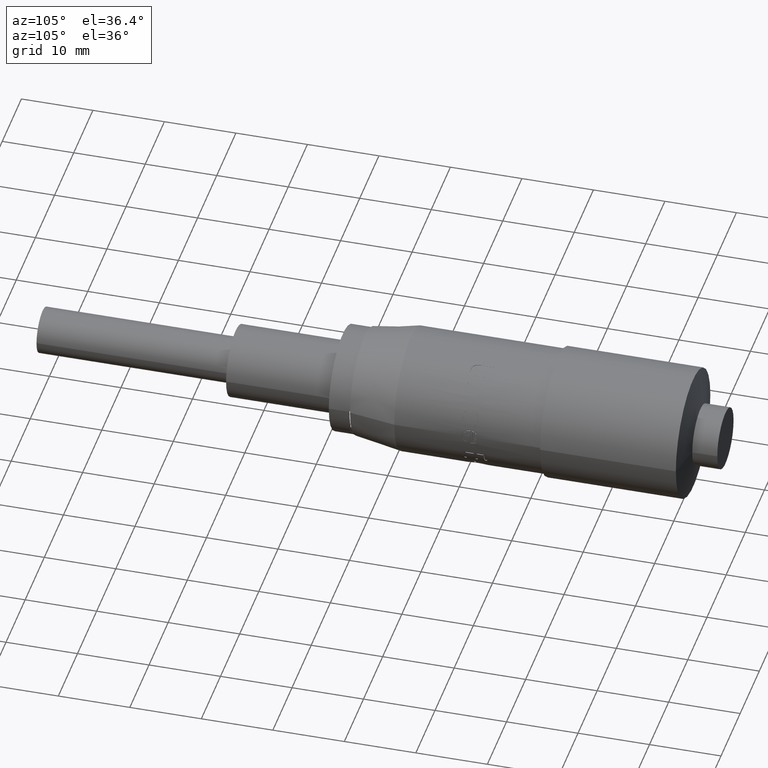
[diagram: clean part render]
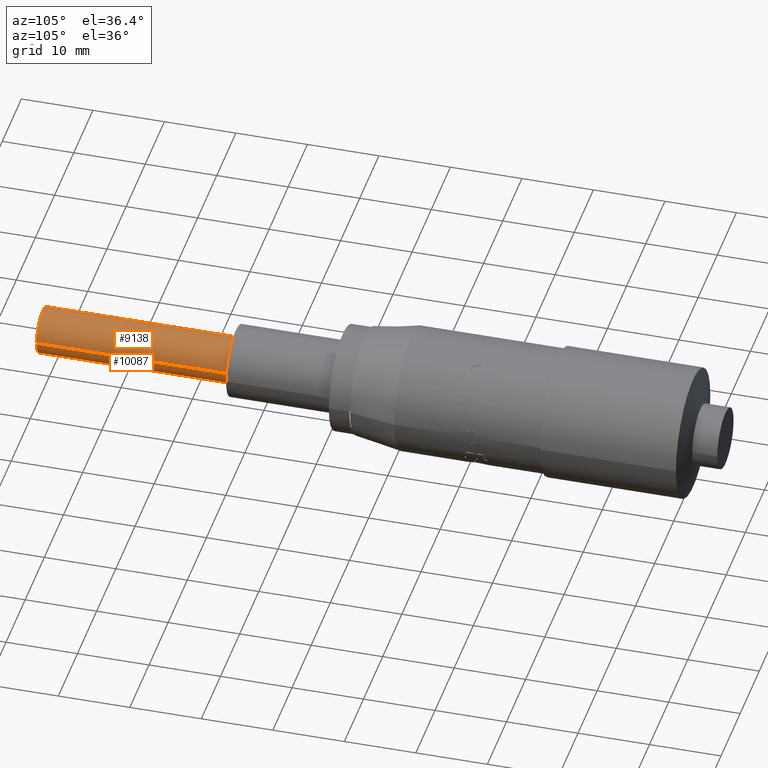
[diagram: same view with one multi-face feature highlighted, each face labeled with its STEP entity id]
A machine part, auxiliary view. The highlighted faces form ONE feature: a constant-radius fillet chain: 2 tangent blend faces with common blend radius 3.175 mm. The faces share edges in the B-rep.
Their STEP definitions:
[1] entity #10087 (Cylinder):
#144 = VERTEX_POINT ( 'NONE', #7089 ) ;
#562 = CARTESIAN_POINT ( 'NONE',  ( 33.65296289245996100, 41.06720585310775100, 28.87709965591408000 ) ) ;
#604 = DIRECTION ( 'NONE',  ( -1.000000000000000000, 0.0000000000000000000, 0.0000000000000000000 ) ) ;
#606 = VERTEX_POINT ( 'NONE', #4324 ) ;
#730 = CYLINDRICAL_SURFACE ( 'NONE', #7176, 3.174999999999997200 ) ;
#754 = EDGE_CURVE ( 'NONE', #144, #4004, #10097, .T. ) ;
#1103 = CARTESIAN_POINT ( 'NONE',  ( 33.65296289245996100, 45.02618278390013300, 28.87709965591408000 ) ) ;
#1710 = LINE ( 'NONE', #8527, #10581 ) ;
#1788 = VECTOR ( 'NONE', #9844, 1000.000000000000000 ) ;
#1985 = DIRECTION ( 'NONE',  ( 1.000000000000000000, 0.0000000000000000000, 0.0000000000000000000 ) ) ;
#2079 = ORIENTED_EDGE ( 'NONE', *, *, #754, .T. ) ;
#2851 = EDGE_LOOP ( 'NONE', ( #4024, #2079, #10700, #9552 ) ) ;
#3262 = VERTEX_POINT ( 'NONE', #4577 ) ;
#3376 = AXIS2_PLACEMENT_3D ( 'NONE', #11201, #5918, #604 ) ;
#4004 = VERTEX_POINT ( 'NONE', #4258 ) ;
#4024 = ORIENTED_EDGE ( 'NONE', *, *, #9424, .F. ) ;
#4110 = DIRECTION ( 'NONE',  ( -1.058937486943297600E-016, 1.000000000000000000, -0.0000000000000000000 ) ) ;
#4153 = LINE ( 'NONE', #9881, #1788 ) ;
#4190 = FACE_OUTER_BOUND ( 'NONE', #2851, .T. ) ;
#4258 = CARTESIAN_POINT ( 'NONE',  ( 30.47796289245997100, -29.97381721609986700, 28.87709965591408000 ) ) ;
#4324 = CARTESIAN_POINT ( 'NONE',  ( 36.82796289245995800, 45.02618278390013300, 28.87709965591408000 ) ) ;
#4577 = CARTESIAN_POINT ( 'NONE',  ( 30.47796289245996700, 45.02618278390013300, 28.87709965591408000 ) ) ;
#5332 = EDGE_CURVE ( 'NONE', #4004, #3262, #4153, .T. ) ;
#5918 = DIRECTION ( 'NONE',  ( -1.058937486943297600E-016, 1.000000000000000000, -0.0000000000000000000 ) ) ;
#6454 = EDGE_CURVE ( 'NONE', #3262, #606, #9994, .T. ) ;
#6752 = DIRECTION ( 'NONE',  ( -1.058937486943297600E-016, 1.000000000000000000, -0.0000000000000000000 ) ) ;
#7089 = CARTESIAN_POINT ( 'NONE',  ( 36.82796289245996500, -29.97381721609986700, 28.87709965591408000 ) ) ;
#7176 = AXIS2_PLACEMENT_3D ( 'NONE', #562, #6752, #11200 ) ;
#7278 = DIRECTION ( 'NONE',  ( 1.058937486943297600E-016, -1.000000000000000000, 0.0000000000000000000 ) ) ;
#8275 = AXIS2_PLACEMENT_3D ( 'NONE', #1103, #7278, #1985 ) ;
#8527 = CARTESIAN_POINT ( 'NONE',  ( 36.82796289245995800, 41.06720585310775100, 28.87709965591408000 ) ) ;
#9424 = EDGE_CURVE ( 'NONE', #144, #606, #1710, .T. ) ;
#9552 = ORIENTED_EDGE ( 'NONE', *, *, #6454, .T. ) ;
#9844 = DIRECTION ( 'NONE',  ( -1.058937486943297600E-016, 1.000000000000000000, -0.0000000000000000000 ) ) ;
#9881 = CARTESIAN_POINT ( 'NONE',  ( 30.47796289245996300, 41.06720585310775100, 28.87709965591408000 ) ) ;
#9994 = CIRCLE ( 'NONE', #8275, 3.174999999999997200 ) ;
#10087 = ADVANCED_FACE ( 'NONE', ( #4190 ), #730, .T. ) ;
#10097 = CIRCLE ( 'NONE', #3376, 3.174999999999997200 ) ;
#10581 = VECTOR ( 'NONE', #4110, 1000.000000000000000 ) ;
#10700 = ORIENTED_EDGE ( 'NONE', *, *, #5332, .T. ) ;
#11200 = DIRECTION ( 'NONE',  ( -1.000000000000000000, 0.0000000000000000000, 0.0000000000000000000 ) ) ;
#11201 = CARTESIAN_POINT ( 'NONE',  ( 33.65296289245996800, -29.97381721609986700, 28.87709965591408000 ) ) ;
[2] entity #9138 (Cylinder):
#144 = VERTEX_POINT ( 'NONE', #7089 ) ;
#355 = ORIENTED_EDGE ( 'NONE', *, *, #11131, .T. ) ;
#481 = DIRECTION ( 'NONE',  ( -1.058937486943297600E-016, 1.000000000000000000, -0.0000000000000000000 ) ) ;
#606 = VERTEX_POINT ( 'NONE', #4324 ) ;
#1083 = CARTESIAN_POINT ( 'NONE',  ( 33.65296289245996100, 45.02618278390013300, 28.87709965591408000 ) ) ;
#1093 = AXIS2_PLACEMENT_3D ( 'NONE', #6626, #3067, #5790 ) ;
#1710 = LINE ( 'NONE', #8527, #10581 ) ;
#1788 = VECTOR ( 'NONE', #9844, 1000.000000000000000 ) ;
#1849 = CIRCLE ( 'NONE', #10899, 3.174999999999997200 ) ;
#1871 = AXIS2_PLACEMENT_3D ( 'NONE', #5783, #481, #6664 ) ;
#1965 = DIRECTION ( 'NONE',  ( 1.000000000000000000, 0.0000000000000000000, 0.0000000000000000000 ) ) ;
#2812 = ORIENTED_EDGE ( 'NONE', *, *, #5332, .F. ) ;
#3067 = DIRECTION ( 'NONE',  ( -1.058937486943297600E-016, 1.000000000000000000, -0.0000000000000000000 ) ) ;
#3262 = VERTEX_POINT ( 'NONE', #4577 ) ;
#3594 = ORIENTED_EDGE ( 'NONE', *, *, #9424, .T. ) ;
#3884 = FACE_OUTER_BOUND ( 'NONE', #4945, .T. ) ;
#4004 = VERTEX_POINT ( 'NONE', #4258 ) ;
#4110 = DIRECTION ( 'NONE',  ( -1.058937486943297600E-016, 1.000000000000000000, -0.0000000000000000000 ) ) ;
#4153 = LINE ( 'NONE', #9881, #1788 ) ;
#4226 = EDGE_CURVE ( 'NONE', #4004, #144, #5890, .T. ) ;
#4258 = CARTESIAN_POINT ( 'NONE',  ( 30.47796289245997100, -29.97381721609986700, 28.87709965591408000 ) ) ;
#4324 = CARTESIAN_POINT ( 'NONE',  ( 36.82796289245995800, 45.02618278390013300, 28.87709965591408000 ) ) ;
#4577 = CARTESIAN_POINT ( 'NONE',  ( 30.47796289245996700, 45.02618278390013300, 28.87709965591408000 ) ) ;
#4945 = EDGE_LOOP ( 'NONE', ( #7099, #3594, #355, #2812 ) ) ;
#5162 = CYLINDRICAL_SURFACE ( 'NONE', #1093, 3.174999999999997200 ) ;
#5332 = EDGE_CURVE ( 'NONE', #4004, #3262, #4153, .T. ) ;
#5783 = CARTESIAN_POINT ( 'NONE',  ( 33.65296289245996800, -29.97381721609986700, 28.87709965591408000 ) ) ;
#5790 = DIRECTION ( 'NONE',  ( -1.000000000000000000, 0.0000000000000000000, 0.0000000000000000000 ) ) ;
#5890 = CIRCLE ( 'NONE', #1871, 3.174999999999997200 ) ;
#6626 = CARTESIAN_POINT ( 'NONE',  ( 33.65296289245996100, 41.06720585310775100, 28.87709965591408000 ) ) ;
#6664 = DIRECTION ( 'NONE',  ( -1.000000000000000000, 0.0000000000000000000, 0.0000000000000000000 ) ) ;
#7089 = CARTESIAN_POINT ( 'NONE',  ( 36.82796289245996500, -29.97381721609986700, 28.87709965591408000 ) ) ;
#7099 = ORIENTED_EDGE ( 'NONE', *, *, #4226, .T. ) ;
#7261 = DIRECTION ( 'NONE',  ( 1.058937486943297600E-016, -1.000000000000000000, 0.0000000000000000000 ) ) ;
#8527 = CARTESIAN_POINT ( 'NONE',  ( 36.82796289245995800, 41.06720585310775100, 28.87709965591408000 ) ) ;
#9138 = ADVANCED_FACE ( 'NONE', ( #3884 ), #5162, .T. ) ;
#9424 = EDGE_CURVE ( 'NONE', #144, #606, #1710, .T. ) ;
#9844 = DIRECTION ( 'NONE',  ( -1.058937486943297600E-016, 1.000000000000000000, -0.0000000000000000000 ) ) ;
#9881 = CARTESIAN_POINT ( 'NONE',  ( 30.47796289245996300, 41.06720585310775100, 28.87709965591408000 ) ) ;
#10581 = VECTOR ( 'NONE', #4110, 1000.000000000000000 ) ;
#10899 = AXIS2_PLACEMENT_3D ( 'NONE', #1083, #7261, #1965 ) ;
#11131 = EDGE_CURVE ( 'NONE', #606, #3262, #1849, .T. ) ;